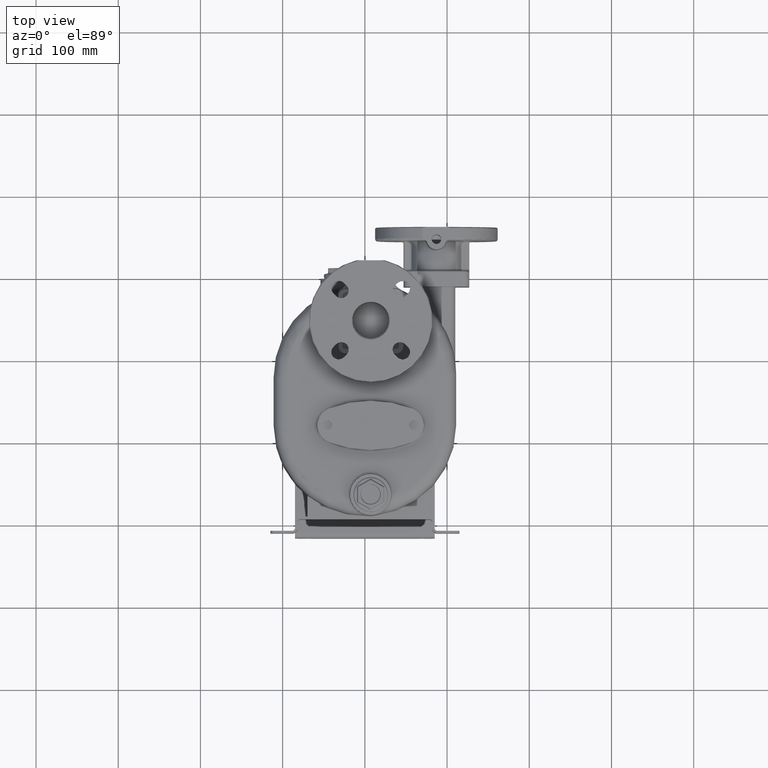
[diagram: clean part render]
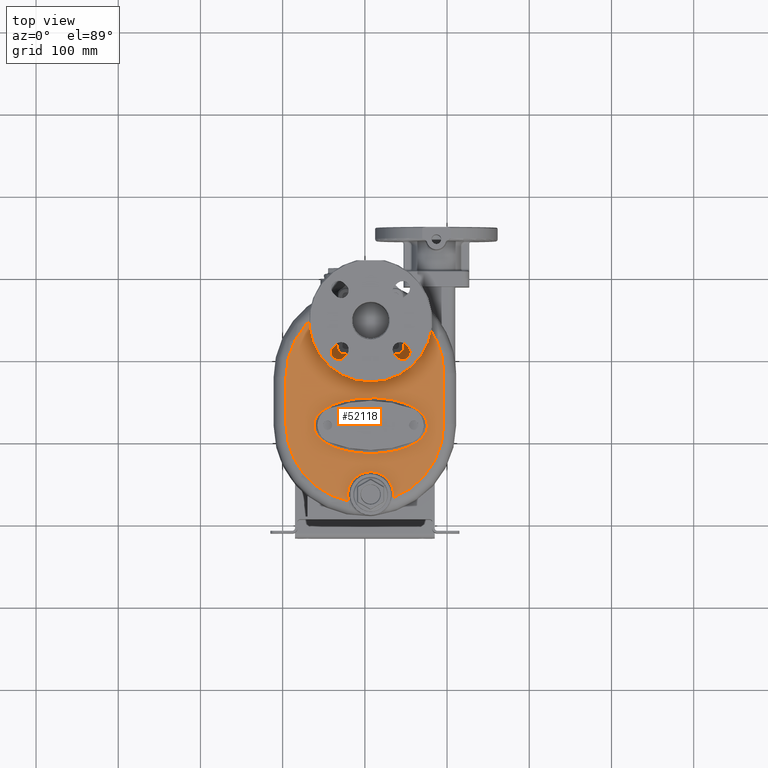
[diagram: same view with one face highlighted and labeled with its STEP entity id]
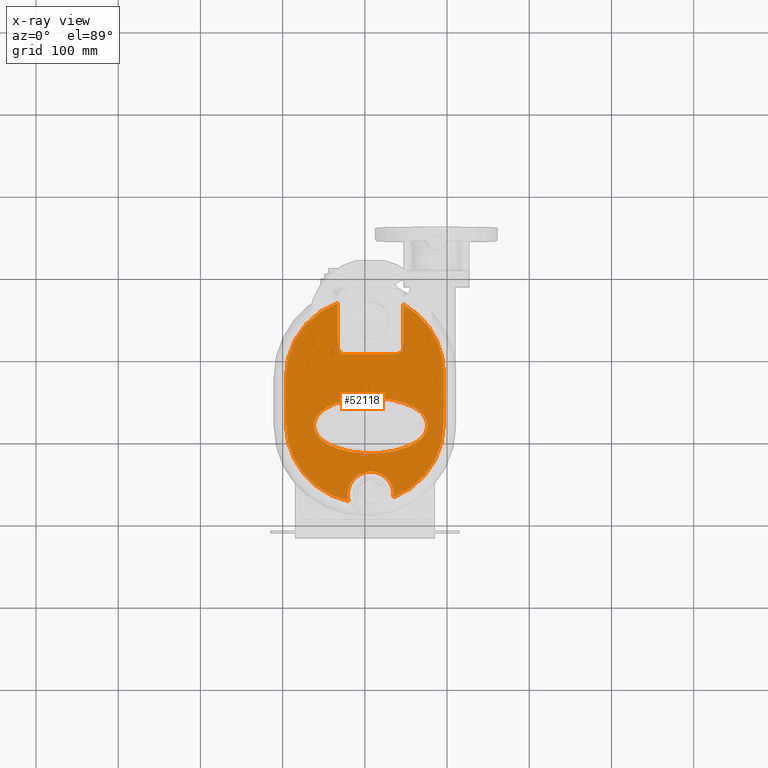
[diagram: x-ray of the same camera — body ghosted, the highlighted face saturated]
A machine part, top view. The second image highlights one B-rep face of the part: STEP entity #52118.
The next image is the same camera in x-ray: the body ghosted, the highlighted face saturated — about 0% of this face is hidden behind the body in this view.
In plain terms, the highlighted planar face has unit normal (0, 0, -1).
Its self-contained STEP definition (entity closure, byte-faithful):
#3171=CARTESIAN_POINT('',(0.E0,1.12E2,7.4E1));
#3172=DIRECTION('',(0.E0,0.E0,1.E0));
#3173=DIRECTION('',(-1.E0,0.E0,0.E0));
#3174=AXIS2_PLACEMENT_3D('',#3171,#3172,#3173);
#3176=DIRECTION('',(0.E0,-1.E0,0.E0));
#3177=VECTOR('',#3176,5.708003202563E1);
#3178=CARTESIAN_POINT('',(-9.6E1,1.690800320256E2,7.4E1));
#3179=LINE('',#3178,#3177);
#3180=CARTESIAN_POINT('',(0.E0,1.690800320256E2,7.4E1));
#3181=DIRECTION('',(0.E0,0.E0,1.E0));
#3182=DIRECTION('',(-3.4375E-1,9.390612000823E-1,0.E0));
#3183=AXIS2_PLACEMENT_3D('',#3180,#3181,#3182);
#3185=CARTESIAN_POINT('',(0.E0,1.736689976975E2,7.4E1));
#3186=DIRECTION('',(0.E0,0.E0,1.E0));
#3187=DIRECTION('',(1.E0,0.E0,0.E0));
#3188=AXIS2_PLACEMENT_3D('',#3185,#3186,#3187);
#3190=DIRECTION('',(0.E0,1.E0,0.E0));
#3191=VECTOR('',#3190,6.166899769750E1);
#3192=CARTESIAN_POINT('',(9.6E1,1.12E2,7.4E1));
#3193=LINE('',#3192,#3191);
#3194=CARTESIAN_POINT('',(0.E0,1.12E2,7.4E1));
#3195=DIRECTION('',(0.E0,0.E0,1.E0));
#3196=DIRECTION('',(3.623258782085E-1,-9.320514781816E-1,0.E0));
#3197=AXIS2_PLACEMENT_3D('',#3194,#3195,#3196);
#3199=CARTESIAN_POINT('',(7.599999999998E1,1.099999999998E2,7.400000634498E1));
#3200=CARTESIAN_POINT('',(7.599999317443E1,1.102135744814E2,7.400001016623E1));
#3201=CARTESIAN_POINT('',(7.599229907980E1,1.106417048539E2,7.399999528184E1));
#3202=CARTESIAN_POINT('',(7.595749155583E1,1.112870308482E2,7.400000126423E1));
#3203=CARTESIAN_POINT('',(7.589893652659E1,1.119349286997E2,7.399999966125E1));
#3204=CARTESIAN_POINT('',(7.581637691769E1,1.125850577622E2,7.400000009077E1));
#3205=CARTESIAN_POINT('',(7.570954380167E1,1.132370469585E2,7.399999997568E1));
#3206=CARTESIAN_POINT('',(7.557808600898E1,1.138903450873E2,7.400000000652E1));
#3207=CARTESIAN_POINT('',(7.542173653598E1,1.145449462327E2,7.399999999825E1));
#3208=CARTESIAN_POINT('',(7.523985690766E1,1.152017572550E2,7.400000000047E1));
#3209=CARTESIAN_POINT('',(7.503159298640E1,1.158614199343E2,7.399999999987E1));
#3210=CARTESIAN_POINT('',(7.479616920723E1,1.165244058653E2,7.400000000003E1));
#3211=CARTESIAN_POINT('',(7.453274117083E1,1.171908225305E2,7.399999999999E1));
#3212=CARTESIAN_POINT('',(7.424040083799E1,1.178607196238E2,7.4E1));
#3213=CARTESIAN_POINT('',(7.391799145068E1,1.185346553187E2,7.4E1));
#3214=CARTESIAN_POINT('',(7.356421515866E1,1.192129695074E2,7.4E1));
#3215=CARTESIAN_POINT('',(7.317765712304E1,1.198960816199E2,7.4E1));
#3216=CARTESIAN_POINT('',(7.275679610768E1,1.205842612227E2,7.4E1));
#3217=CARTESIAN_POINT('',(7.230000907389E1,1.212776921596E2,7.4E1));
#3218=CARTESIAN_POINT('',(7.180534040832E1,1.219768421755E2,7.4E1));
#3219=CARTESIAN_POINT('',(7.127087796199E1,1.226818322072E2,7.4E1));
#3220=CARTESIAN_POINT('',(7.069433660117E1,1.233929679227E2,7.4E1));
#3221=CARTESIAN_POINT('',(7.007338677992E1,1.241104205850E2,7.4E1));
#3222=CARTESIAN_POINT('',(6.940558207864E1,1.248341900215E2,7.4E1));
#3223=CARTESIAN_POINT('',(6.868799005821E1,1.255644851601E2,7.4E1));
#3224=CARTESIAN_POINT('',(6.791792389553E1,1.263011713846E2,7.4E1));
#3225=CARTESIAN_POINT('',(6.709210027617E1,1.270441678286E2,7.4E1));
#3226=CARTESIAN_POINT('',(6.620720784048E1,1.277933244476E2,7.4E1));
#3227=CARTESIAN_POINT('',(6.525995393841E1,1.285482072719E2,7.4E1));
#3228=CARTESIAN_POINT('',(6.424646069119E1,1.293083700499E2,7.4E1));
#3229=CARTESIAN_POINT('',(6.316321637141E1,1.300731653962E2,7.4E1));
#3230=CARTESIAN_POINT('',(6.200622592836E1,1.308416616528E2,7.4E1));
#3231=CARTESIAN_POINT('',(6.077174800670E1,1.316128406981E2,7.4E1));
#3232=CARTESIAN_POINT('',(5.945578958768E1,1.323853297145E2,7.4E1));
#3233=CARTESIAN_POINT('',(5.805453730645E1,1.331576652123E2,7.4E1));
#3234=CARTESIAN_POINT('',(5.656417048403E1,1.339279670653E2,7.4E1));
#3235=CARTESIAN_POINT('',(5.498113656314E1,1.346942018989E2,7.4E1));
#3236=CARTESIAN_POINT('',(5.330204993034E1,1.354539767268E2,7.4E1));
#3237=CARTESIAN_POINT('',(5.152392194266E1,1.362046112394E2,7.4E1));
#3238=CARTESIAN_POINT('',(4.964416015035E1,1.369432083821E2,7.4E1));
#3239=CARTESIAN_POINT('',(4.766079853117E1,1.376664211827E2,7.4E1));
#3240=CARTESIAN_POINT('',(4.557246477209E1,1.383708226925E2,7.4E1));
#3241=CARTESIAN_POINT('',(4.337866750331E1,1.390525436352E2,7.4E1));
#3242=CARTESIAN_POINT('',(4.107977775895E1,1.397076242701E2,7.4E1));
#3243=CARTESIAN_POINT('',(3.867711111201E1,1.403319104407E2,7.4E1));
#3244=CARTESIAN_POINT('',(3.617326376817E1,1.409210464704E2,7.4E1));
#3245=CARTESIAN_POINT('',(3.357168466818E1,1.414708231672E2,7.4E1));
#3246=CARTESIAN_POINT('',(3.087757250381E1,1.419767629115E2,7.4E1));
#3247=CARTESIAN_POINT('',(2.809681585770E1,1.424348584021E2,7.4E1));
#3248=CARTESIAN_POINT('',(2.523725186404E1,1.428408991198E2,7.4E1));
#3249=CARTESIAN_POINT('',(2.230714917523E1,1.431914181211E2,7.4E1));
#3250=CARTESIAN_POINT('',(1.931673476568E1,1.434828678907E2,7.4E1));
#3251=CARTESIAN_POINT('',(1.627641398333E1,1.437126374676E2,7.4E1));
#3252=CARTESIAN_POINT('',(1.319818799272E1,1.438782388689E2,7.4E1));
#3253=CARTESIAN_POINT('',(1.009423949639E1,1.439781204617E2,7.4E1));
#3254=CARTESIAN_POINT('',(6.977418436665E0,1.440112139186E2,7.4E1));
#3255=CARTESIAN_POINT('',(3.860920509929E0,1.439771249324E2,7.4E1));
#3256=CARTESIAN_POINT('',(7.577303781682E-1,1.438763799375E2,7.4E1));
#3257=CARTESIAN_POINT('',(-2.319426095937E0,1.437097907932E2,7.4E1));
#3258=CARTESIAN_POINT('',(-5.357934889954E0,1.434793407175E2,7.4E1));
#3259=CARTESIAN_POINT('',(-8.346633380043E0,1.431870826241E2,7.4E1));
#3260=CARTESIAN_POINT('',(-1.127430390097E1,1.428360678007E2,7.4E1));
#3261=CARTESIAN_POINT('',(-1.413160437940E1,1.424294865696E2,7.4E1));
#3262=CARTESIAN_POINT('',(-1.690954895437E1,1.419711303172E2,7.4E1));
#3263=CARTESIAN_POINT('',(-1.960101600633E1,1.414649366931E2,7.4E1));
#3264=CARTESIAN_POINT('',(-2.219962175430E1,1.409151600533E2,7.4E1));
#3265=CARTESIAN_POINT('',(-2.470074139662E1,1.403260288292E2,7.4E1));
#3266=CARTESIAN_POINT('',(-2.710051781887E1,1.397019705918E2,7.4E1));
#3267=CARTESIAN_POINT('',(-2.939674319626E1,1.390471318986E2,7.4E1));
#3268=CARTESIAN_POINT('',(-3.158789397878E1,1.383658131237E2,7.4E1));
#3269=CARTESIAN_POINT('',(-3.367379906058E1,1.376618393616E2,7.4E1));
#3270=CARTESIAN_POINT('',(-3.565493742292E1,1.369391099810E2,7.4E1));
#3271=CARTESIAN_POINT('',(-3.753269212327E1,1.362010285349E2,7.4E1));
#3272=CARTESIAN_POINT('',(-3.930906005177E1,1.354508922798E2,7.4E1));
#3273=CARTESIAN_POINT('',(-4.098656224660E1,1.346916539059E2,7.4E1));
#3274=CARTESIAN_POINT('',(-4.256819146798E1,1.339259401043E2,7.4E1));
#3275=CARTESIAN_POINT('',(-4.405728549558E1,1.331561849003E2,7.4E1));
#3276=CARTESIAN_POINT('',(-4.545738668377E1,1.323844136909E2,7.4E1));
#3277=CARTESIAN_POINT('',(-4.677227229394E1,1.316125039983E2,7.4E1));
#3278=CARTESIAN_POINT('',(-4.800579837115E1,1.308419336967E2,7.4E1));
#3279=CARTESIAN_POINT('',(-4.916185351256E1,1.300740763317E2,7.4E1));
#3280=CARTESIAN_POINT('',(-5.024430181801E1,1.293099355538E2,7.4E1));
#3281=CARTESIAN_POINT('',(-5.125701375160E1,1.285504668914E2,7.4E1));
#3282=CARTESIAN_POINT('',(-5.220365574523E1,1.277962168413E2,7.4E1));
#3283=CARTESIAN_POINT('',(-5.308803891076E1,1.270477153087E2,7.4E1));
#3284=CARTESIAN_POINT('',(-5.391342986184E1,1.263053169472E2,7.4E1));
#3285=CARTESIAN_POINT('',(-5.468333782490E1,1.255690695476E2,7.4E1));
#3286=CARTESIAN_POINT('',(-5.540078986789E1,1.248392173036E2,7.4E1));
#3287=CARTESIAN_POINT('',(-5.606862851303E1,1.241157292662E2,7.4E1));
#3288=CARTESIAN_POINT('',(-5.668970867633E1,1.233984921473E2,7.4E1));
#3289=CARTESIAN_POINT('',(-5.726640586485E1,1.226875283520E2,7.4E1));
#3290=CARTESIAN_POINT('',(-5.780117041657E1,1.219825309272E2,7.4E1));
#3291=CARTESIAN_POINT('',(-5.829611144136E1,1.212834019989E2,7.4E1));
#3292=CARTESIAN_POINT('',(-5.875321981832E1,1.205898906226E2,7.4E1));
#3293=CARTESIAN_POINT('',(-5.917436176240E1,1.199016766347E2,7.4E1));
#3294=CARTESIAN_POINT('',(-5.956119302175E1,1.192185422172E2,7.4E1));
#3295=CARTESIAN_POINT('',(-5.991528472895E1,1.185400593933E2,7.4E1));
#3296=CARTESIAN_POINT('',(-6.023798058331E1,1.178660275802E2,7.4E1));
#3297=CARTESIAN_POINT('',(-6.053055630618E1,1.171960603412E2,7.399999999999E1));
#3298=CARTESIAN_POINT('',(-6.079415406132E1,1.165297821705E2,7.400000000003E1));
#3299=CARTESIAN_POINT('',(-6.102984478630E1,1.158666869958E2,7.399999999990E1));
#3300=CARTESIAN_POINT('',(-6.123840842812E1,1.152065858171E2,7.400000000039E1));
#3301=CARTESIAN_POINT('',(-6.142060472162E1,1.145494548329E2,7.399999999854E1));
#3302=CARTESIAN_POINT('',(-6.157710486507E1,1.138948090072E2,7.400000000544E1));
#3303=CARTESIAN_POINT('',(-6.170864197913E1,1.132418595859E2,7.399999997968E1));
#3304=CARTESIAN_POINT('',(-6.181572289521E1,1.125897763170E2,7.400000007583E1));
#3305=CARTESIAN_POINT('',(-6.189849447894E1,1.119390170605E2,7.399999971702E1));
#3306=CARTESIAN_POINT('',(-6.195728424412E1,1.112900955124E2,7.400000105611E1));
#3307=CARTESIAN_POINT('',(-6.199227653355E1,1.106433925375E2,7.399999605855E1));
#3308=CARTESIAN_POINT('',(-6.199999625812E1,1.102141695336E2,7.400000849264E1));
#3309=CARTESIAN_POINT('',(-6.199999999998E1,1.100000000002E2,7.400000634498E1));
#3311=CARTESIAN_POINT('',(-6.199999999998E1,1.100000000002E2,7.400000634498E1));
#3312=CARTESIAN_POINT('',(-6.199999317443E1,1.097864255186E2,7.400001016623E1));
#3313=CARTESIAN_POINT('',(-6.199229907980E1,1.093582951461E2,7.399999528184E1));
#3314=CARTESIAN_POINT('',(-6.195749155583E1,1.087129691518E2,7.400000126423E1));
#3315=CARTESIAN_POINT('',(-6.189893652659E1,1.080650713003E2,7.399999966125E1));
#3316=CARTESIAN_POINT('',(-6.181637691769E1,1.074149422378E2,7.400000009077E1));
#3317=CARTESIAN_POINT('',(-6.170954380167E1,1.067629530415E2,7.399999997568E1));
#3318=CARTESIAN_POINT('',(-6.157808600898E1,1.061096549127E2,7.400000000652E1));
#3319=CARTESIAN_POINT('',(-6.142173653598E1,1.054550537673E2,7.399999999825E1));
#3320=CARTESIAN_POINT('',(-6.123985690766E1,1.047982427450E2,7.400000000047E1));
#3321=CARTESIAN_POINT('',(-6.103159298640E1,1.041385800657E2,7.399999999987E1));
#3322=CARTESIAN_POINT('',(-6.079616920723E1,1.034755941347E2,7.400000000003E1));
#3323=CARTESIAN_POINT('',(-6.053274117083E1,1.028091774695E2,7.399999999999E1));
#3324=CARTESIAN_POINT('',(-6.024040083799E1,1.021392803762E2,7.4E1));
#3325=CARTESIAN_POINT('',(-5.991799145068E1,1.014653446813E2,7.4E1));
#3326=CARTESIAN_POINT('',(-5.956421515867E1,1.007870304926E2,7.4E1));
#3327=CARTESIAN_POINT('',(-5.917765712304E1,1.001039183801E2,7.4E1));
#3328=CARTESIAN_POINT('',(-5.875679610768E1,9.941573877734E1,7.4E1));
#3329=CARTESIAN_POINT('',(-5.830000907389E1,9.872230784045E1,7.4E1));
#3330=CARTESIAN_POINT('',(-5.780534040832E1,9.802315782449E1,7.4E1));
#3331=CARTESIAN_POINT('',(-5.727087796199E1,9.731816779279E1,7.4E1));
#3332=CARTESIAN_POINT('',(-5.669433660117E1,9.660703207734E1,7.4E1));
#3333=CARTESIAN_POINT('',(-5.607338677993E1,9.588957941500E1,7.4E1));
#3334=CARTESIAN_POINT('',(-5.540558207864E1,9.516580997849E1,7.4E1));
#3335=CARTESIAN_POINT('',(-5.468799005822E1,9.443551483985E1,7.4E1));
#3336=CARTESIAN_POINT('',(-5.391792389553E1,9.369882861536E1,7.4E1));
#3337=CARTESIAN_POINT('',(-5.309210027617E1,9.295583217136E1,7.4E1));
#3338=CARTESIAN_POINT('',(-5.220720784048E1,9.220667555239E1,7.4E1));
#3339=CARTESIAN_POINT('',(-5.125995393841E1,9.145179272807E1,7.4E1));
#3340=CARTESIAN_POINT('',(-5.024646069120E1,9.069162995005E1,7.4E1));
#3341=CARTESIAN_POINT('',(-4.916321637141E1,8.992683460381E1,7.4E1));
#3342=CARTESIAN_POINT('',(-4.800622592836E1,8.915833834719E1,7.4E1));
#3343=CARTESIAN_POINT('',(-4.677174800671E1,8.838715930190E1,7.4E1));
#3344=CARTESIAN_POINT('',(-4.545578958768E1,8.761467028553E1,7.4E1));
#3345=CARTESIAN_POINT('',(-4.405453730645E1,8.684233478774E1,7.4E1));
#3346=CARTESIAN_POINT('',(-4.256417048403E1,8.607203293465E1,7.4E1));
#3347=CARTESIAN_POINT('',(-4.098113656314E1,8.530579810112E1,7.4E1));
#3348=CARTESIAN_POINT('',(-3.930204993034E1,8.454602327321E1,7.4E1));
#3349=CARTESIAN_POINT('',(-3.752392194267E1,8.379538876064E1,7.4E1));
#3350=CARTESIAN_POINT('',(-3.564416015036E1,8.305679161787E1,7.4E1));
#3351=CARTESIAN_POINT('',(-3.366079853117E1,8.233357881726E1,7.4E1));
#3352=CARTESIAN_POINT('',(-3.157246477210E1,8.162917730751E1,7.4E1));
#3353=CARTESIAN_POINT('',(-2.937866750332E1,8.094745636475E1,7.4E1));
#3354=CARTESIAN_POINT('',(-2.707977775896E1,8.029237572995E1,7.4E1));
#3355=CARTESIAN_POINT('',(-2.467711111202E1,7.966808955932E1,7.4E1));
#3356=CARTESIAN_POINT('',(-2.217326376818E1,7.907895352958E1,7.4E1));
#3357=CARTESIAN_POINT('',(-1.957168466819E1,7.852917683277E1,7.4E1));
#3358=CARTESIAN_POINT('',(-1.687757250381E1,7.802323708855E1,7.4E1));
#3359=CARTESIAN_POINT('',(-1.409681585771E1,7.756514159790E1,7.4E1));
#3360=CARTESIAN_POINT('',(-1.123725186405E1,7.715910088021E1,7.4E1));
#3361=CARTESIAN_POINT('',(-8.307149175230E0,7.680858187887E1,7.4E1));
#3362=CARTESIAN_POINT('',(-5.316734765686E0,7.651713210934E1,7.4E1));
#3363=CARTESIAN_POINT('',(-2.276413983332E0,7.628736253242E1,7.4E1));
#3364=CARTESIAN_POINT('',(8.018120072717E-1,7.612176113114E1,7.4E1));
#3365=CARTESIAN_POINT('',(3.905760503602E0,7.602187953829E1,7.4E1));
#3366=CARTESIAN_POINT('',(7.022581563332E0,7.598878608137E1,7.4E1));
#3367=CARTESIAN_POINT('',(1.013907949007E1,7.602287506757E1,7.4E1));
#3368=CARTESIAN_POINT('',(1.324226962183E1,7.612362006246E1,7.4E1));
#3369=CARTESIAN_POINT('',(1.631942609593E1,7.629020920675E1,7.4E1));
#3370=CARTESIAN_POINT('',(1.935793488995E1,7.652065928252E1,7.4E1));
#3371=CARTESIAN_POINT('',(2.234663338004E1,7.681291737587E1,7.4E1));
#3372=CARTESIAN_POINT('',(2.527430390097E1,7.716393219935E1,7.4E1));
#3373=CARTESIAN_POINT('',(2.813160437940E1,7.757051343036E1,7.4E1));
#3374=CARTESIAN_POINT('',(3.090954895437E1,7.802886968283E1,7.4E1));
#3375=CARTESIAN_POINT('',(3.360101600633E1,7.853506330688E1,7.4E1));
#3376=CARTESIAN_POINT('',(3.619962175430E1,7.908483994672E1,7.4E1));
#3377=CARTESIAN_POINT('',(3.870074139662E1,7.967397117081E1,7.4E1));
#3378=CARTESIAN_POINT('',(4.110051781887E1,8.029802940824E1,7.4E1));
#3379=CARTESIAN_POINT('',(4.339674319626E1,8.095286810144E1,7.4E1));
#3380=CARTESIAN_POINT('',(4.558789397878E1,8.163418687627E1,7.4E1));
#3381=CARTESIAN_POINT('',(4.767379906058E1,8.233816063839E1,7.4E1));
#3382=CARTESIAN_POINT('',(4.965493742292E1,8.306089001904E1,7.4E1));
#3383=CARTESIAN_POINT('',(5.153269212327E1,8.379897146508E1,7.4E1));
#3384=CARTESIAN_POINT('',(5.330906005177E1,8.454910772015E1,7.4E1));
#3385=CARTESIAN_POINT('',(5.498656224660E1,8.530834609415E1,7.4E1));
#3386=CARTESIAN_POINT('',(5.656819146798E1,8.607405989573E1,7.4E1));
#3387=CARTESIAN_POINT('',(5.805728549558E1,8.684381509967E1,7.4E1));
#3388=CARTESIAN_POINT('',(5.945738668377E1,8.761558630909E1,7.4E1));
#3389=CARTESIAN_POINT('',(6.077227229393E1,8.838749600166E1,7.4E1));
#3390=CARTESIAN_POINT('',(6.200579837115E1,8.915806630326E1,7.4E1));
#3391=CARTESIAN_POINT('',(6.316185351256E1,8.992592366835E1,7.4E1));
#3392=CARTESIAN_POINT('',(6.424430181801E1,9.069006444616E1,7.4E1));
#3393=CARTESIAN_POINT('',(6.525701375160E1,9.144953310861E1,7.4E1));
#3394=CARTESIAN_POINT('',(6.620365574523E1,9.220378315875E1,7.4E1));
#3395=CARTESIAN_POINT('',(6.708803891076E1,9.295228469129E1,7.4E1));
#3396=CARTESIAN_POINT('',(6.791342986184E1,9.369468305279E1,7.4E1));
#3397=CARTESIAN_POINT('',(6.868333782490E1,9.443093045238E1,7.4E1));
#3398=CARTESIAN_POINT('',(6.940078986789E1,9.516078269635E1,7.4E1));
#3399=CARTESIAN_POINT('',(7.006862851303E1,9.588427073376E1,7.4E1));
#3400=CARTESIAN_POINT('',(7.068970867633E1,9.660150785275E1,7.4E1));
#3401=CARTESIAN_POINT('',(7.126640586485E1,9.731247164803E1,7.4E1));
#3402=CARTESIAN_POINT('',(7.180117041657E1,9.801746907277E1,7.4E1));
#3403=CARTESIAN_POINT('',(7.229611144136E1,9.871659800113E1,7.4E1));
#3404=CARTESIAN_POINT('',(7.275321981832E1,9.941010937740E1,7.4E1));
#3405=CARTESIAN_POINT('',(7.317436176240E1,1.000983233653E2,7.4E1));
#3406=CARTESIAN_POINT('',(7.356119302175E1,1.007814577828E2,7.4E1));
#3407=CARTESIAN_POINT('',(7.391528472895E1,1.014599406067E2,7.4E1));
#3408=CARTESIAN_POINT('',(7.423798058331E1,1.021339724198E2,7.4E1));
#3409=CARTESIAN_POINT('',(7.453055630618E1,1.028039396588E2,7.399999999999E1));
#3410=CARTESIAN_POINT('',(7.479415406132E1,1.034702178295E2,7.400000000003E1));
#3411=CARTESIAN_POINT('',(7.502984478630E1,1.041333130042E2,7.399999999990E1));
#3412=CARTESIAN_POINT('',(7.523840842812E1,1.047934141829E2,7.400000000039E1));
#3413=CARTESIAN_POINT('',(7.542060472162E1,1.054505451671E2,7.399999999854E1));
#3414=CARTESIAN_POINT('',(7.557710486507E1,1.061051909928E2,7.400000000544E1));
#3415=CARTESIAN_POINT('',(7.570864197913E1,1.067581404141E2,7.399999997968E1));
#3416=CARTESIAN_POINT('',(7.581572289521E1,1.074102236830E2,7.400000007583E1));
#3417=CARTESIAN_POINT('',(7.589849447894E1,1.080609829395E2,7.399999971702E1));
#3418=CARTESIAN_POINT('',(7.595728424412E1,1.087099044876E2,7.400000105611E1));
#3419=CARTESIAN_POINT('',(7.599227653355E1,1.093566074625E2,7.399999605855E1));
#3420=CARTESIAN_POINT('',(7.599999625812E1,1.097858304664E2,7.400000849264E1));
#3421=CARTESIAN_POINT('',(7.599999999998E1,1.099999999998E2,7.400000634498E1));
#3423=CARTESIAN_POINT('',(7.E0,2.6E1,7.4E1));
#3424=DIRECTION('',(0.E0,0.E0,-1.E0));
#3425=DIRECTION('',(-9.591171022104E-1,-2.830095126451E-1,0.E0));
#3426=AXIS2_PLACEMENT_3D('',#3423,#3424,#3425);
#3564=CARTESIAN_POINT('',(3.478328408610E1,2.252305816357E1,7.399999536927E1));
#5186=CARTESIAN_POINT('',(-1.985527873442E1,1.807573326154E1,7.399999609717E1));
#7058=DIRECTION('',(0.E0,-1.E0,0.E0));
#7059=VECTOR('',#7058,5.422990723353E1);
#7060=CARTESIAN_POINT('',(-3.3E1,2.592299072335E2,7.4E1));
#7061=LINE('',#7060,#7059);
#7170=DIRECTION('',(0.E0,1.E0,0.E0));
#7171=VECTOR('',#7170,5.237682289921E1);
#7172=CARTESIAN_POINT('',(4.7E1,2.05E2,7.4E1));
#7173=LINE('',#7172,#7171);
#7199=DIRECTION('',(1.E0,0.E0,0.E0));
#7200=VECTOR('',#7199,6.4E1);
#7201=CARTESIAN_POINT('',(-2.5E1,1.97E2,7.4E1));
#7202=LINE('',#7201,#7200);
#9333=CARTESIAN_POINT('',(-2.5E1,2.05E2,7.4E1));
#9334=DIRECTION('',(0.E0,0.E0,-1.E0));
#9335=DIRECTION('',(0.E0,-1.E0,0.E0));
#9336=AXIS2_PLACEMENT_3D('',#9333,#9334,#9335);
#9356=CARTESIAN_POINT('',(3.9E1,2.05E2,7.4E1));
#9357=DIRECTION('',(0.E0,0.E0,-1.E0));
#9358=DIRECTION('',(1.E0,0.E0,0.E0));
#9359=AXIS2_PLACEMENT_3D('',#9356,#9357,#9358);
#42154=CARTESIAN_POINT('',(-2.5E1,1.97E2,7.4E1));
#42155=CARTESIAN_POINT('',(3.9E1,1.97E2,7.4E1));
#42156=VERTEX_POINT('',#42154);
#42157=VERTEX_POINT('',#42155);
#42158=CARTESIAN_POINT('',(4.7E1,2.05E2,7.4E1));
#42159=VERTEX_POINT('',#42158);
#42160=CARTESIAN_POINT('',(-3.3E1,2.05E2,7.4E1));
#42161=VERTEX_POINT('',#42160);
#42170=CARTESIAN_POINT('',(9.6E1,1.736689976975E2,7.4E1));
#42171=CARTESIAN_POINT('',(4.7E1,2.573768228992E2,7.4E1));
#42172=VERTEX_POINT('',#42170);
#42173=VERTEX_POINT('',#42171);
#42174=CARTESIAN_POINT('',(9.6E1,1.12E2,7.4E1));
#42175=VERTEX_POINT('',#42174);
#42178=CARTESIAN_POINT('',(-9.6E1,1.690800320256E2,7.4E1));
#42179=CARTESIAN_POINT('',(-9.6E1,1.12E2,7.4E1));
#42180=VERTEX_POINT('',#42178);
#42181=VERTEX_POINT('',#42179);
#42186=CARTESIAN_POINT('',(-3.3E1,2.592299072335E2,7.4E1));
#42187=VERTEX_POINT('',#42186);
#42215=VERTEX_POINT('',#3199);
#42216=VERTEX_POINT('',#3309);
#42234=VERTEX_POINT('',#3564);
#42239=VERTEX_POINT('',#5186);
#52083=CARTESIAN_POINT('',(0.E0,1.1E2,7.4E1));
#52084=DIRECTION('',(0.E0,0.E0,-1.E0));
#52085=DIRECTION('',(-1.E0,0.E0,0.E0));
#52086=AXIS2_PLACEMENT_3D('',#52083,#52084,#52085);
#52087=PLANE('',#52086);
#52089=ORIENTED_EDGE('',*,*,#52088,.F.);
#52091=ORIENTED_EDGE('',*,*,#52090,.F.);
#52093=ORIENTED_EDGE('',*,*,#52092,.F.);
#52095=ORIENTED_EDGE('',*,*,#52094,.F.);
#52097=ORIENTED_EDGE('',*,*,#52096,.T.);
#52099=ORIENTED_EDGE('',*,*,#52098,.F.);
#52101=ORIENTED_EDGE('',*,*,#52100,.T.);
#52103=ORIENTED_EDGE('',*,*,#52102,.F.);
#52105=ORIENTED_EDGE('',*,*,#52104,.T.);
#52106=ORIENTED_EDGE('',*,*,#52060,.F.);
#52107=ORIENTED_EDGE('',*,*,#52073,.F.);
#52109=ORIENTED_EDGE('',*,*,#52108,.F.);
#52110=EDGE_LOOP('',(#52089,#52091,#52093,#52095,#52097,#52099,#52101,#52103,
#52105,#52106,#52107,#52109));
#52111=FACE_OUTER_BOUND('',#52110,.F.);
#52113=ORIENTED_EDGE('',*,*,#52112,.T.);
#52115=ORIENTED_EDGE('',*,*,#52114,.T.);
#52116=EDGE_LOOP('',(#52113,#52115));
#52117=FACE_BOUND('',#52116,.F.);
#52118=ADVANCED_FACE('',(#52111,#52117),#52087,.F.);
#3175=CIRCLE('',#3174,9.6E1);
#3184=CIRCLE('',#3183,9.6E1);
#3189=CIRCLE('',#3188,9.6E1);
#3198=CIRCLE('',#3197,9.6E1);
#3310=B_SPLINE_CURVE_WITH_KNOTS('',3,(#3199,#3200,#3201,#3202,#3203,#3204,#3205,
#3206,#3207,#3208,#3209,#3210,#3211,#3212,#3213,#3214,#3215,#3216,#3217,#3218,
#3219,#3220,#3221,#3222,#3223,#3224,#3225,#3226,#3227,#3228,#3229,#3230,#3231,
#3232,#3233,#3234,#3235,#3236,#3237,#3238,#3239,#3240,#3241,#3242,#3243,#3244,
#3245,#3246,#3247,#3248,#3249,#3250,#3251,#3252,#3253,#3254,#3255,#3256,#3257,
#3258,#3259,#3260,#3261,#3262,#3263,#3264,#3265,#3266,#3267,#3268,#3269,#3270,
#3271,#3272,#3273,#3274,#3275,#3276,#3277,#3278,#3279,#3280,#3281,#3282,#3283,
#3284,#3285,#3286,#3287,#3288,#3289,#3290,#3291,#3292,#3293,#3294,#3295,#3296,
#3297,#3298,#3299,#3300,#3301,#3302,#3303,#3304,#3305,#3306,#3307,#3308,#3309),
.UNSPECIFIED.,.F.,.F.,(4,1,1,1,1,1,1,1,1,1,1,1,1,1,1,1,1,1,1,1,1,1,1,1,1,1,1,1,
1,1,1,1,1,1,1,1,1,1,1,1,1,1,1,1,1,1,1,1,1,1,1,1,1,1,1,1,1,1,1,1,1,1,1,1,1,1,1,1,
1,1,1,1,1,1,1,1,1,1,1,1,1,1,1,1,1,1,1,1,1,1,1,1,1,1,1,1,1,1,1,1,1,1,1,1,1,1,1,1,
4),(0.E0,9.259259259259E-3,1.851851851852E-2,2.777777777778E-2,
3.703703703704E-2,4.629629629630E-2,5.555555555556E-2,6.481481481481E-2,
7.407407407407E-2,8.333333333333E-2,9.259259259259E-2,1.018518518519E-1,
1.111111111111E-1,1.203703703704E-1,1.296296296296E-1,1.388888888889E-1,
1.481481481481E-1,1.574074074074E-1,1.666666666667E-1,1.759259259259E-1,
1.851851851852E-1,1.944444444444E-1,2.037037037037E-1,2.129629629630E-1,
2.222222222222E-1,2.314814814815E-1,2.407407407407E-1,2.5E-1,2.592592592593E-1,
2.685185185185E-1,2.777777777778E-1,2.870370370370E-1,2.962962962963E-1,
3.055555555556E-1,3.148148148148E-1,3.240740740741E-1,3.333333333333E-1,
3.425925925926E-1,3.518518518519E-1,3.611111111111E-1,3.703703703704E-1,
3.796296296296E-1,3.888888888889E-1,3.981481481481E-1,4.074074074074E-1,
4.166666666667E-1,4.259259259259E-1,4.351851851852E-1,4.444444444444E-1,
4.537037037037E-1,4.629629629630E-1,4.722222222222E-1,4.814814814815E-1,
4.907407407407E-1,5.E-1,5.092592592593E-1,5.185185185185E-1,5.277777777778E-1,
5.370370370370E-1,5.462962962963E-1,5.555555555556E-1,5.648148148148E-1,
5.740740740741E-1,5.833333333333E-1,5.925925925926E-1,6.018518518519E-1,
6.111111111111E-1,6.203703703704E-1,6.296296296296E-1,6.388888888889E-1,
6.481481481481E-1,6.574074074074E-1,6.666666666667E-1,6.759259259259E-1,
6.851851851852E-1,6.944444444444E-1,7.037037037037E-1,7.129629629630E-1,
7.222222222222E-1,7.314814814815E-1,7.407407407407E-1,7.5E-1,7.592592592593E-1,
7.685185185185E-1,7.777777777778E-1,7.870370370370E-1,7.962962962963E-1,
8.055555555556E-1,8.148148148148E-1,8.240740740741E-1,8.333333333333E-1,
8.425925925926E-1,8.518518518519E-1,8.611111111111E-1,8.703703703704E-1,
8.796296296296E-1,8.888888888889E-1,8.981481481481E-1,9.074074074074E-1,
9.166666666667E-1,9.259259259259E-1,9.351851851852E-1,9.444444444444E-1,
9.537037037037E-1,9.629629629630E-1,9.722222222222E-1,9.814814814815E-1,
9.907407407407E-1,1.E0),.UNSPECIFIED.);
#3422=B_SPLINE_CURVE_WITH_KNOTS('',3,(#3311,#3312,#3313,#3314,#3315,#3316,#3317,
#3318,#3319,#3320,#3321,#3322,#3323,#3324,#3325,#3326,#3327,#3328,#3329,#3330,
#3331,#3332,#3333,#3334,#3335,#3336,#3337,#3338,#3339,#3340,#3341,#3342,#3343,
#3344,#3345,#3346,#3347,#3348,#3349,#3350,#3351,#3352,#3353,#3354,#3355,#3356,
#3357,#3358,#3359,#3360,#3361,#3362,#3363,#3364,#3365,#3366,#3367,#3368,#3369,
#3370,#3371,#3372,#3373,#3374,#3375,#3376,#3377,#3378,#3379,#3380,#3381,#3382,
#3383,#3384,#3385,#3386,#3387,#3388,#3389,#3390,#3391,#3392,#3393,#3394,#3395,
#3396,#3397,#3398,#3399,#3400,#3401,#3402,#3403,#3404,#3405,#3406,#3407,#3408,
#3409,#3410,#3411,#3412,#3413,#3414,#3415,#3416,#3417,#3418,#3419,#3420,#3421),
.UNSPECIFIED.,.F.,.F.,(4,1,1,1,1,1,1,1,1,1,1,1,1,1,1,1,1,1,1,1,1,1,1,1,1,1,1,1,
1,1,1,1,1,1,1,1,1,1,1,1,1,1,1,1,1,1,1,1,1,1,1,1,1,1,1,1,1,1,1,1,1,1,1,1,1,1,1,1,
1,1,1,1,1,1,1,1,1,1,1,1,1,1,1,1,1,1,1,1,1,1,1,1,1,1,1,1,1,1,1,1,1,1,1,1,1,1,1,1,
4),(0.E0,9.259259259259E-3,1.851851851852E-2,2.777777777778E-2,
3.703703703704E-2,4.629629629630E-2,5.555555555556E-2,6.481481481481E-2,
7.407407407407E-2,8.333333333333E-2,9.259259259259E-2,1.018518518519E-1,
1.111111111111E-1,1.203703703704E-1,1.296296296296E-1,1.388888888889E-1,
1.481481481481E-1,1.574074074074E-1,1.666666666667E-1,1.759259259259E-1,
1.851851851852E-1,1.944444444444E-1,2.037037037037E-1,2.129629629630E-1,
2.222222222222E-1,2.314814814815E-1,2.407407407407E-1,2.5E-1,2.592592592593E-1,
2.685185185185E-1,2.777777777778E-1,2.870370370370E-1,2.962962962963E-1,
3.055555555556E-1,3.148148148148E-1,3.240740740741E-1,3.333333333333E-1,
3.425925925926E-1,3.518518518519E-1,3.611111111111E-1,3.703703703704E-1,
3.796296296296E-1,3.888888888889E-1,3.981481481481E-1,4.074074074074E-1,
4.166666666667E-1,4.259259259259E-1,4.351851851852E-1,4.444444444444E-1,
4.537037037037E-1,4.629629629630E-1,4.722222222222E-1,4.814814814815E-1,
4.907407407407E-1,5.E-1,5.092592592593E-1,5.185185185185E-1,5.277777777778E-1,
5.370370370370E-1,5.462962962963E-1,5.555555555556E-1,5.648148148148E-1,
5.740740740741E-1,5.833333333333E-1,5.925925925926E-1,6.018518518519E-1,
6.111111111111E-1,6.203703703704E-1,6.296296296296E-1,6.388888888889E-1,
6.481481481481E-1,6.574074074074E-1,6.666666666667E-1,6.759259259259E-1,
6.851851851852E-1,6.944444444444E-1,7.037037037037E-1,7.129629629630E-1,
7.222222222222E-1,7.314814814815E-1,7.407407407407E-1,7.5E-1,7.592592592593E-1,
7.685185185185E-1,7.777777777778E-1,7.870370370370E-1,7.962962962963E-1,
8.055555555556E-1,8.148148148148E-1,8.240740740741E-1,8.333333333333E-1,
8.425925925926E-1,8.518518518519E-1,8.611111111111E-1,8.703703703704E-1,
8.796296296296E-1,8.888888888889E-1,8.981481481481E-1,9.074074074074E-1,
9.166666666667E-1,9.259259259259E-1,9.351851851852E-1,9.444444444444E-1,
9.537037037037E-1,9.629629629630E-1,9.722222222222E-1,9.814814814815E-1,
9.907407407407E-1,1.E0),.UNSPECIFIED.);
#3427=CIRCLE('',#3426,2.8E1);
#9337=CIRCLE('',#9336,8.E0);
#9360=CIRCLE('',#9359,8.E0);
#52060=EDGE_CURVE('',#42172,#42173,#3189,.T.);
#52073=EDGE_CURVE('',#42175,#42172,#3193,.T.);
#52088=EDGE_CURVE('',#42239,#42234,#3427,.T.);
#52090=EDGE_CURVE('',#42181,#42239,#3175,.T.);
#52092=EDGE_CURVE('',#42180,#42181,#3179,.T.);
#52094=EDGE_CURVE('',#42187,#42180,#3184,.T.);
#52096=EDGE_CURVE('',#42187,#42161,#7061,.T.);
#52098=EDGE_CURVE('',#42156,#42161,#9337,.T.);
#52100=EDGE_CURVE('',#42156,#42157,#7202,.T.);
#52102=EDGE_CURVE('',#42159,#42157,#9360,.T.);
#52104=EDGE_CURVE('',#42159,#42173,#7173,.T.);
#52108=EDGE_CURVE('',#42234,#42175,#3198,.T.);
#52112=EDGE_CURVE('',#42215,#42216,#3310,.T.);
#52114=EDGE_CURVE('',#42216,#42215,#3422,.T.);